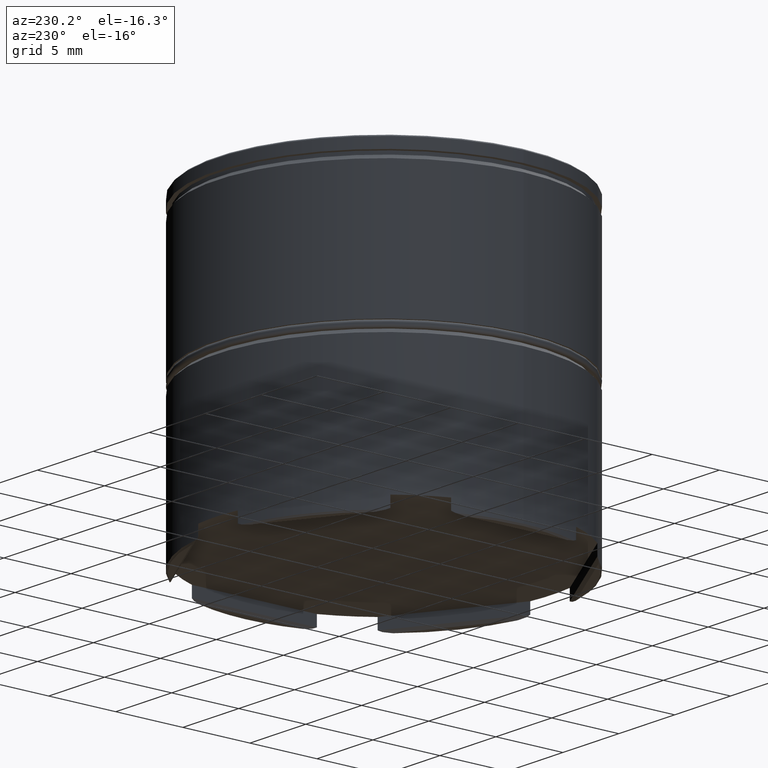
[diagram: clean part render]
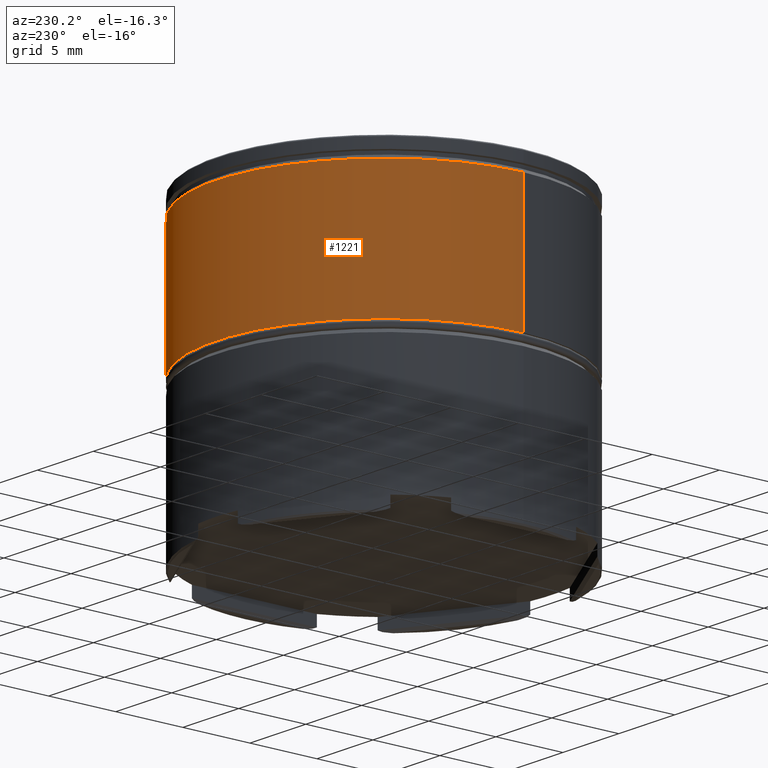
[diagram: same view with one face highlighted and labeled with its STEP entity id]
A machine part, auxiliary view. The second image highlights one B-rep face of the part: STEP entity #1221.
In plain terms, the highlighted cylindrical surface (partial cylindrical patch) has radius 12.5 mm, axis along (-0, -0, 1).
Its self-contained STEP definition (entity closure, byte-faithful):
#19 = VECTOR ( 'NONE', #273, 1000.000000000000000 ) ;
#83 = ORIENTED_EDGE ( 'NONE', *, *, #332, .F. ) ;
#84 = CARTESIAN_POINT ( 'NONE',  ( -12.50000000000000000, 1.530808498934191521E-15, -11.00000000000000000 ) ) ;
#135 = ORIENTED_EDGE ( 'NONE', *, *, #1386, .T. ) ;
#243 = DIRECTION ( 'NONE',  ( -0.000000000000000000, -0.000000000000000000, 1.000000000000000000 ) ) ;
#273 = DIRECTION ( 'NONE',  ( -0.000000000000000000, -0.000000000000000000, 1.000000000000000000 ) ) ;
#332 = EDGE_CURVE ( 'NONE', #1055, #377, #721, .T. ) ;
#377 = VERTEX_POINT ( 'NONE', #707 ) ;
#476 = DIRECTION ( 'NONE',  ( -0.000000000000000000, -0.000000000000000000, 1.000000000000000000 ) ) ;
#575 = CARTESIAN_POINT ( 'NONE',  ( 12.50000000000000000, 0.000000000000000000, 0.000000000000000000 ) ) ;
#693 = DIRECTION ( 'NONE',  ( -0.000000000000000000, -0.000000000000000000, 1.000000000000000000 ) ) ;
#707 = CARTESIAN_POINT ( 'NONE',  ( 12.50000000000000000, 0.000000000000000000, -1.425000000000010481 ) ) ;
#721 = LINE ( 'NONE', #575, #1007 ) ;
#723 = FACE_OUTER_BOUND ( 'NONE', #1359, .T. ) ;
#757 = EDGE_CURVE ( 'NONE', #1055, #1185, #1036, .T. ) ;
#791 = CARTESIAN_POINT ( 'NONE',  ( -12.50000000000000000, 1.530808498934191521E-15, 0.000000000000000000 ) ) ;
#854 = CARTESIAN_POINT ( 'NONE',  ( 0.000000000000000000, 0.000000000000000000, 0.000000000000000000 ) ) ;
#861 = CYLINDRICAL_SURFACE ( 'NONE', #1628, 12.50000000000000000 ) ;
#874 = AXIS2_PLACEMENT_3D ( 'NONE', #941, #693, #1056 ) ;
#875 = CARTESIAN_POINT ( 'NONE',  ( -12.50000000000000000, 1.530808498934191521E-15, -1.425000000000010481 ) ) ;
#941 = CARTESIAN_POINT ( 'NONE',  ( 0.000000000000000000, 0.000000000000000000, -11.00000000000000000 ) ) ;
#999 = CARTESIAN_POINT ( 'NONE',  ( 12.50000000000000000, 0.000000000000000000, -11.00000000000000000 ) ) ;
#1007 = VECTOR ( 'NONE', #476, 1000.000000000000000 ) ;
#1036 = CIRCLE ( 'NONE', #874, 12.50000000000000000 ) ;
#1055 = VERTEX_POINT ( 'NONE', #999 ) ;
#1056 = DIRECTION ( 'NONE',  ( 1.000000000000000000, 0.000000000000000000, 0.000000000000000000 ) ) ;
#1059 = VERTEX_POINT ( 'NONE', #875 ) ;
#1092 = CARTESIAN_POINT ( 'NONE',  ( 0.000000000000000000, 0.000000000000000000, -1.425000000000010481 ) ) ;
#1185 = VERTEX_POINT ( 'NONE', #84 ) ;
#1200 = EDGE_CURVE ( 'NONE', #1059, #377, #1422, .T. ) ;
#1221 = ADVANCED_FACE ( 'NONE', ( #723 ), #861, .T. ) ;
#1359 = EDGE_LOOP ( 'NONE', ( #1390, #135, #1519, #83 ) ) ;
#1382 = DIRECTION ( 'NONE',  ( 1.000000000000000000, 0.000000000000000000, 0.000000000000000000 ) ) ;
#1386 = EDGE_CURVE ( 'NONE', #1185, #1059, #1410, .T. ) ;
#1390 = ORIENTED_EDGE ( 'NONE', *, *, #757, .T. ) ;
#1410 = LINE ( 'NONE', #791, #19 ) ;
#1422 = CIRCLE ( 'NONE', #1526, 12.50000000000000000 ) ;
#1445 = DIRECTION ( 'NONE',  ( 1.000000000000000000, 0.000000000000000000, 0.000000000000000000 ) ) ;
#1519 = ORIENTED_EDGE ( 'NONE', *, *, #1200, .T. ) ;
#1526 = AXIS2_PLACEMENT_3D ( 'NONE', #1092, #1597, #1445 ) ;
#1597 = DIRECTION ( 'NONE',  ( 0.000000000000000000, 0.000000000000000000, -1.000000000000000000 ) ) ;
#1628 = AXIS2_PLACEMENT_3D ( 'NONE', #854, #243, #1382 ) ;